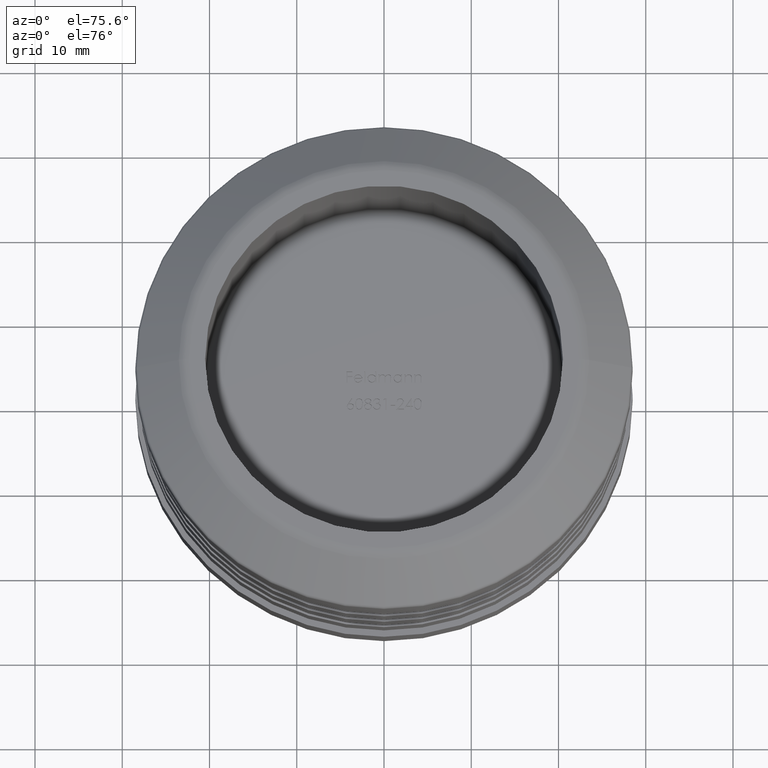
[diagram: clean part render]
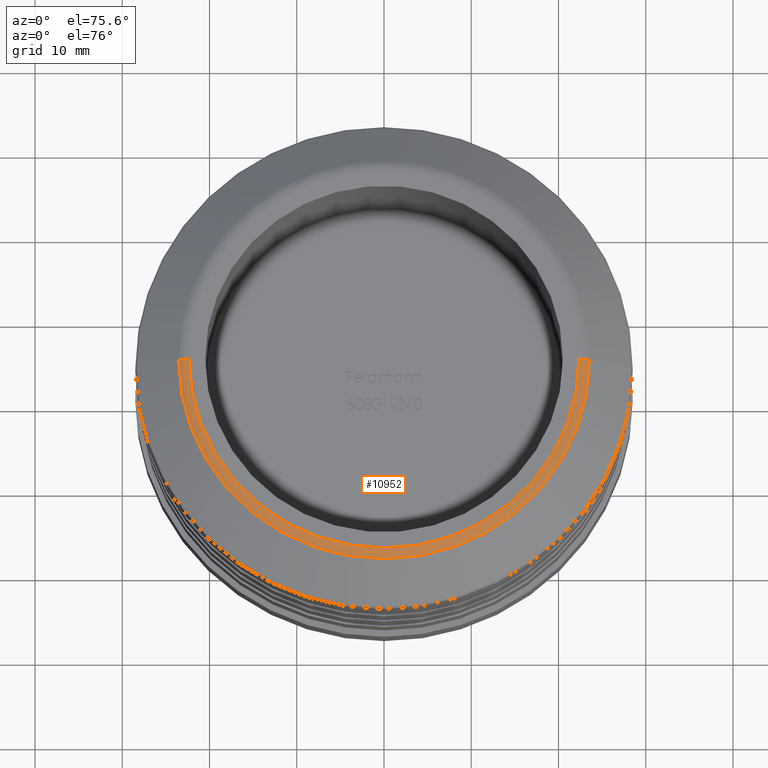
[diagram: same view with one face highlighted and labeled with its STEP entity id]
A machine part, auxiliary view. The second image highlights one B-rep face of the part: STEP entity #10952.
In plain terms, the highlighted toroidal blend (fillet) surface has major radius 22.3496 mm and minor (blend) radius 2 mm.
Its self-contained STEP definition (entity closure, byte-faithful):
#321 = DIRECTION ( 'NONE',  ( -0.0000000000000000000, -1.000000000000000000, -0.0000000000000000000 ) ) ;
#548 = DIRECTION ( 'NONE',  ( 0.0000000000000000000, 0.0000000000000000000, -1.000000000000000000 ) ) ;
#613 = AXIS2_PLACEMENT_3D ( 'NONE', #4914, #2672, #2625 ) ;
#2074 = DIRECTION ( 'NONE',  ( -1.224646799147353200E-016, 1.000000000000000000, 0.0000000000000000000 ) ) ;
#2524 = DIRECTION ( 'NONE',  ( 0.0000000000000000000, 0.0000000000000000000, -1.000000000000000000 ) ) ;
#2576 = CARTESIAN_POINT ( 'NONE',  ( 22.34963237281613900, 2.809070833439616100E-015, 3.000000000000000000 ) ) ;
#2625 = DIRECTION ( 'NONE',  ( -1.000000000000000000, 0.0000000000000000000, 0.0000000000000000000 ) ) ;
#2664 = EDGE_CURVE ( 'NONE', #3812, #7819, #7189, .T. ) ;
#2672 = DIRECTION ( 'NONE',  ( 0.0000000000000000000, 0.0000000000000000000, -1.000000000000000000 ) ) ;
#2847 = DIRECTION ( 'NONE',  ( 1.000000000000000000, 0.0000000000000000000, 0.0000000000000000000 ) ) ;
#2866 = AXIS2_PLACEMENT_3D ( 'NONE', #4430, #12461, #11446 ) ;
#3345 = ORIENTED_EDGE ( 'NONE', *, *, #8228, .T. ) ;
#3732 = CARTESIAN_POINT ( 'NONE',  ( -23.52597576816623400, 0.0000000000000000000, 2.617472168606378000 ) ) ;
#3812 = VERTEX_POINT ( 'NONE', #2576 ) ;
#4342 = DIRECTION ( 'NONE',  ( -1.000000000000000000, -1.224646799147351500E-016, 0.0000000000000000000 ) ) ;
#4430 = CARTESIAN_POINT ( 'NONE',  ( 0.0000000000000000000, 0.0000000000000000000, 3.000000000000000000 ) ) ;
#4452 = AXIS2_PLACEMENT_3D ( 'NONE', #11058, #548, #2847 ) ;
#4738 = FACE_OUTER_BOUND ( 'NONE', #5970, .T. ) ;
#4914 = CARTESIAN_POINT ( 'NONE',  ( 0.0000000000000000000, 0.0000000000000000000, 1.000000000000000000 ) ) ;
#4966 = CARTESIAN_POINT ( 'NONE',  ( -22.34963237281613900, 0.0000000000000000000, 1.000000000000000000 ) ) ;
#4973 = CIRCLE ( 'NONE', #9081, 2.000000000000000000 ) ;
#5228 = ORIENTED_EDGE ( 'NONE', *, *, #12943, .F. ) ;
#5970 = EDGE_LOOP ( 'NONE', ( #11250, #5228, #3345, #13192 ) ) ;
#6279 = EDGE_CURVE ( 'NONE', #7819, #9370, #7133, .T. ) ;
#6536 = TOROIDAL_SURFACE ( 'NONE', #613, 22.34963237281613900, 2.000000000000000000 ) ;
#7133 = CIRCLE ( 'NONE', #4452, 23.52597576816623400 ) ;
#7189 = CIRCLE ( 'NONE', #9644, 2.000000000000001800 ) ;
#7819 = VERTEX_POINT ( 'NONE', #13674 ) ;
#7960 = CIRCLE ( 'NONE', #2866, 22.34963237281613900 ) ;
#8228 = EDGE_CURVE ( 'NONE', #8676, #9370, #4973, .T. ) ;
#8676 = VERTEX_POINT ( 'NONE', #10479 ) ;
#9081 = AXIS2_PLACEMENT_3D ( 'NONE', #4966, #321, #2524 ) ;
#9370 = VERTEX_POINT ( 'NONE', #3732 ) ;
#9644 = AXIS2_PLACEMENT_3D ( 'NONE', #11227, #2074, #4342 ) ;
#10479 = CARTESIAN_POINT ( 'NONE',  ( -22.34963237281613900, 0.0000000000000000000, 3.000000000000000000 ) ) ;
#10952 = ADVANCED_FACE ( 'NONE', ( #4738 ), #6536, .T. ) ;
#11058 = CARTESIAN_POINT ( 'NONE',  ( 0.0000000000000000000, 0.0000000000000000000, 2.617472168606378000 ) ) ;
#11227 = CARTESIAN_POINT ( 'NONE',  ( 22.34963237281613900, 2.737040574748935100E-015, 1.000000000000000000 ) ) ;
#11250 = ORIENTED_EDGE ( 'NONE', *, *, #2664, .F. ) ;
#11446 = DIRECTION ( 'NONE',  ( -1.000000000000000000, 0.0000000000000000000, 0.0000000000000000000 ) ) ;
#12461 = DIRECTION ( 'NONE',  ( -0.0000000000000000000, -0.0000000000000000000, 1.000000000000000000 ) ) ;
#12943 = EDGE_CURVE ( 'NONE', #8676, #3812, #7960, .T. ) ;
#13192 = ORIENTED_EDGE ( 'NONE', *, *, #6279, .F. ) ;
#13674 = CARTESIAN_POINT ( 'NONE',  ( 23.52597576816623400, 3.173063629544113400E-015, 2.617472168606378000 ) ) ;